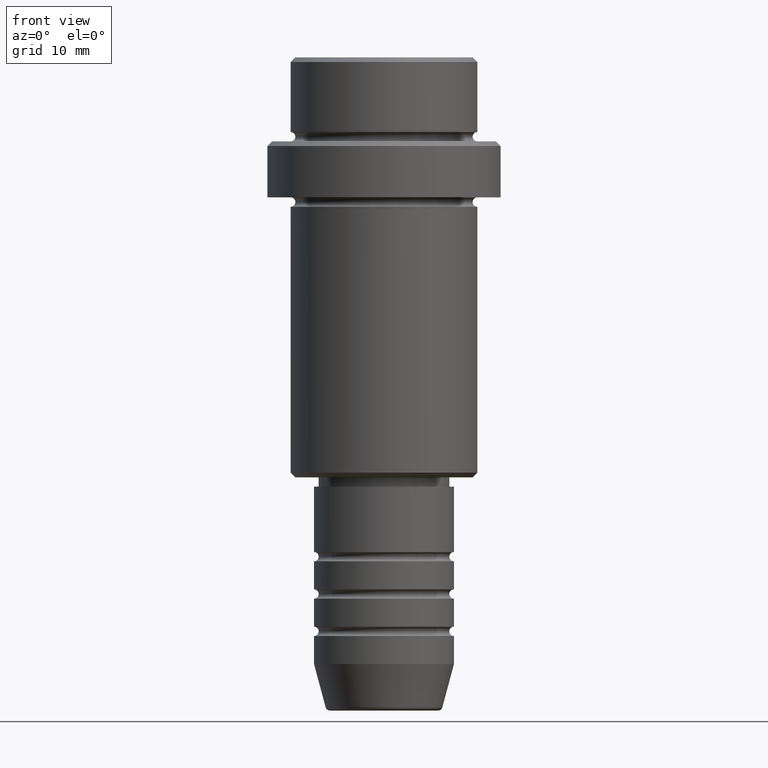
[diagram: clean part render]
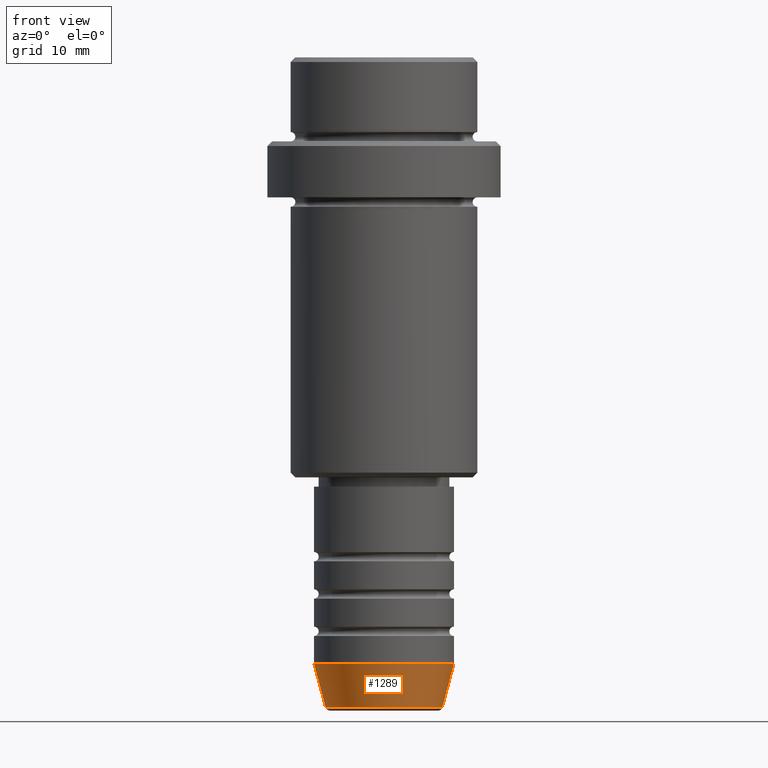
[diagram: same view with one face highlighted and labeled with its STEP entity id]
A machine part, front view. The second image highlights one B-rep face of the part: STEP entity #1289.
In plain terms, the highlighted conical surface has half-angle 15 deg.
Its self-contained STEP definition (entity closure, byte-faithful):
#5 = CARTESIAN_POINT ( 'NONE',  ( -6.259553456999443100, 8.425296549405632444E-16, -69.62940952255125637 ) ) ;
#113 = CARTESIAN_POINT ( 'NONE',  ( 7.500000000000000000, 0.000000000000000000, -65.00000000000000000 ) ) ;
#126 = ORIENTED_EDGE ( 'NONE', *, *, #543, .T. ) ;
#135 = ORIENTED_EDGE ( 'NONE', *, *, #773, .F. ) ;
#198 = CARTESIAN_POINT ( 'NONE',  ( 0.000000000000000000, 0.000000000000000000, -65.00000000000000000 ) ) ;
#204 = DIRECTION ( 'NONE',  ( 1.000000000000000000, 0.000000000000000000, 0.000000000000000000 ) ) ;
#218 = VECTOR ( 'NONE', #1347, 1000.000000000000000 ) ;
#219 = DIRECTION ( 'NONE',  ( 1.000000000000000000, 0.000000000000000000, 0.000000000000000000 ) ) ;
#234 = DIRECTION ( 'NONE',  ( 0.2588190451025213501, 0.000000000000000000, 0.9659258262890680902 ) ) ;
#253 = FACE_OUTER_BOUND ( 'NONE', #1401, .T. ) ;
#264 = CARTESIAN_POINT ( 'NONE',  ( -7.500000000000000000, 9.184850993605147944E-16, -65.00000000000000000 ) ) ;
#319 = AXIS2_PLACEMENT_3D ( 'NONE', #677, #556, #969 ) ;
#329 = EDGE_CURVE ( 'NONE', #648, #335, #664, .T. ) ;
#335 = VERTEX_POINT ( 'NONE', #654 ) ;
#346 = CARTESIAN_POINT ( 'NONE',  ( 7.500000000000000000, 0.000000000000000000, -65.00000000000000000 ) ) ;
#413 = DIRECTION ( 'NONE',  ( -0.000000000000000000, -0.000000000000000000, 1.000000000000000000 ) ) ;
#457 = CARTESIAN_POINT ( 'NONE',  ( -7.500000000000000000, 9.184850993605147944E-16, -65.00000000000000000 ) ) ;
#521 = ORIENTED_EDGE ( 'NONE', *, *, #329, .T. ) ;
#543 = EDGE_CURVE ( 'NONE', #335, #1221, #980, .T. ) ;
#556 = DIRECTION ( 'NONE',  ( -0.000000000000000000, -0.000000000000000000, 1.000000000000000000 ) ) ;
#648 = VERTEX_POINT ( 'NONE', #5 ) ;
#654 = CARTESIAN_POINT ( 'NONE',  ( 6.259553456999443100, 0.000000000000000000, -69.62940952255125637 ) ) ;
#664 = CIRCLE ( 'NONE', #685, 6.259553456999443100 ) ;
#677 = CARTESIAN_POINT ( 'NONE',  ( 0.000000000000000000, 0.000000000000000000, -65.00000000000000000 ) ) ;
#685 = AXIS2_PLACEMENT_3D ( 'NONE', #1312, #1331, #219 ) ;
#773 = EDGE_CURVE ( 'NONE', #1355, #1221, #1180, .T. ) ;
#895 = VECTOR ( 'NONE', #234, 1000.000000000000000 ) ;
#969 = DIRECTION ( 'NONE',  ( 1.000000000000000000, 0.000000000000000000, 0.000000000000000000 ) ) ;
#980 = LINE ( 'NONE', #346, #895 ) ;
#1162 = CONICAL_SURFACE ( 'NONE', #319, 7.500000000000000000, 0.2617993877991500740 ) ;
#1180 = CIRCLE ( 'NONE', #1298, 7.500000000000000000 ) ;
#1211 = ORIENTED_EDGE ( 'NONE', *, *, #1389, .F. ) ;
#1221 = VERTEX_POINT ( 'NONE', #113 ) ;
#1245 = LINE ( 'NONE', #264, #218 ) ;
#1289 = ADVANCED_FACE ( 'NONE', ( #253 ), #1162, .T. ) ;
#1298 = AXIS2_PLACEMENT_3D ( 'NONE', #198, #413, #204 ) ;
#1312 = CARTESIAN_POINT ( 'NONE',  ( 0.000000000000000000, 0.000000000000000000, -69.62940952255125637 ) ) ;
#1331 = DIRECTION ( 'NONE',  ( -0.000000000000000000, -0.000000000000000000, 1.000000000000000000 ) ) ;
#1347 = DIRECTION ( 'NONE',  ( -0.2588190451025213501, 3.169619151431772337E-17, 0.9659258262890680902 ) ) ;
#1355 = VERTEX_POINT ( 'NONE', #457 ) ;
#1389 = EDGE_CURVE ( 'NONE', #648, #1355, #1245, .T. ) ;
#1401 = EDGE_LOOP ( 'NONE', ( #1211, #521, #126, #135 ) ) ;